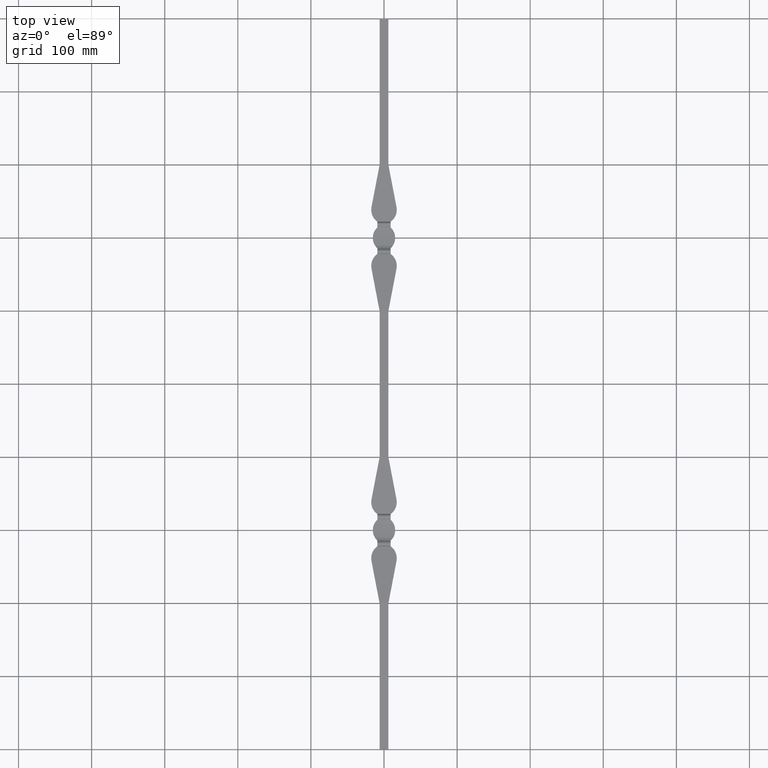
[diagram: clean part render]
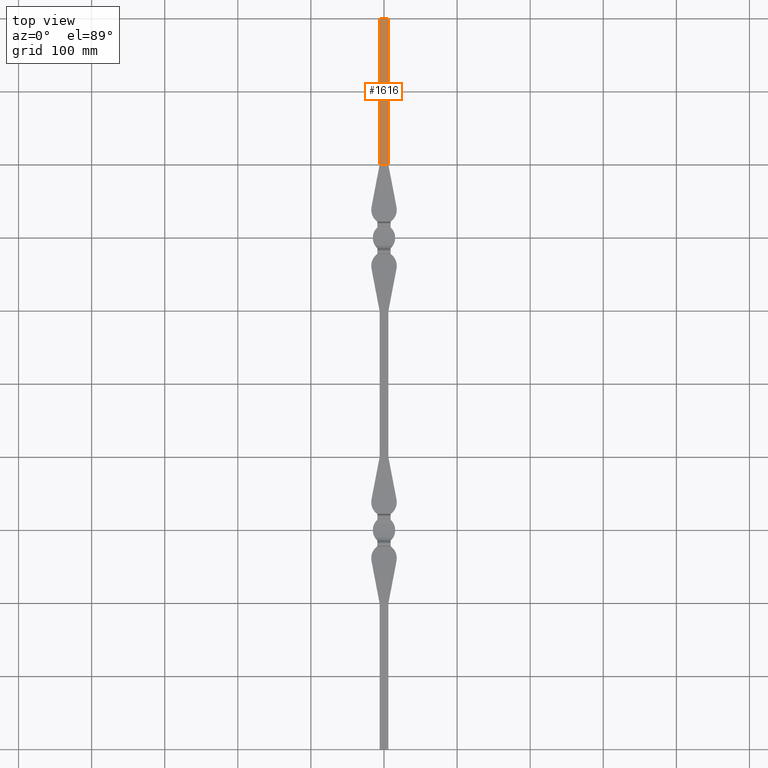
[diagram: same view with one face highlighted and labeled with its STEP entity id]
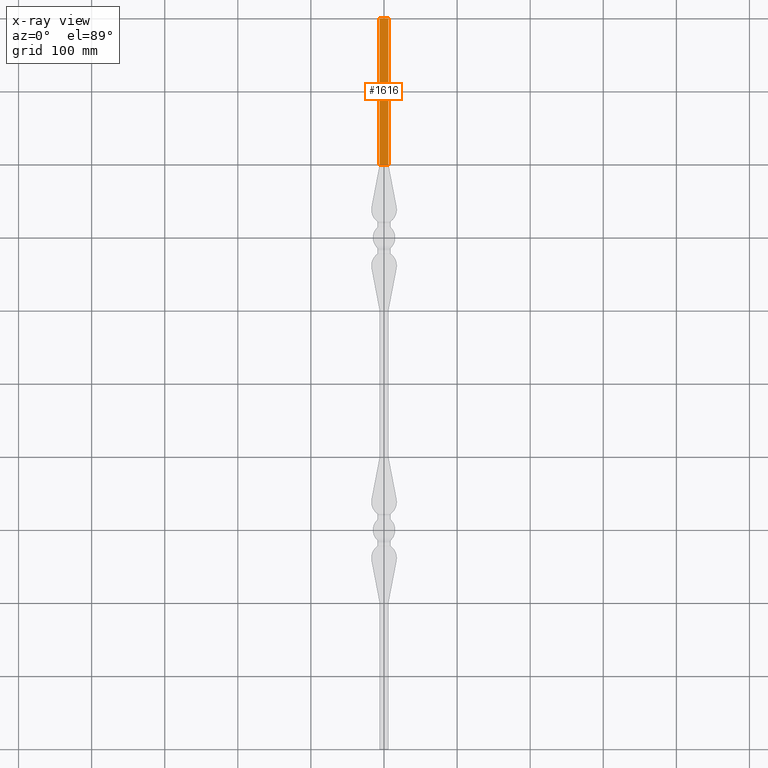
[diagram: x-ray of the same camera — body ghosted, the highlighted face saturated]
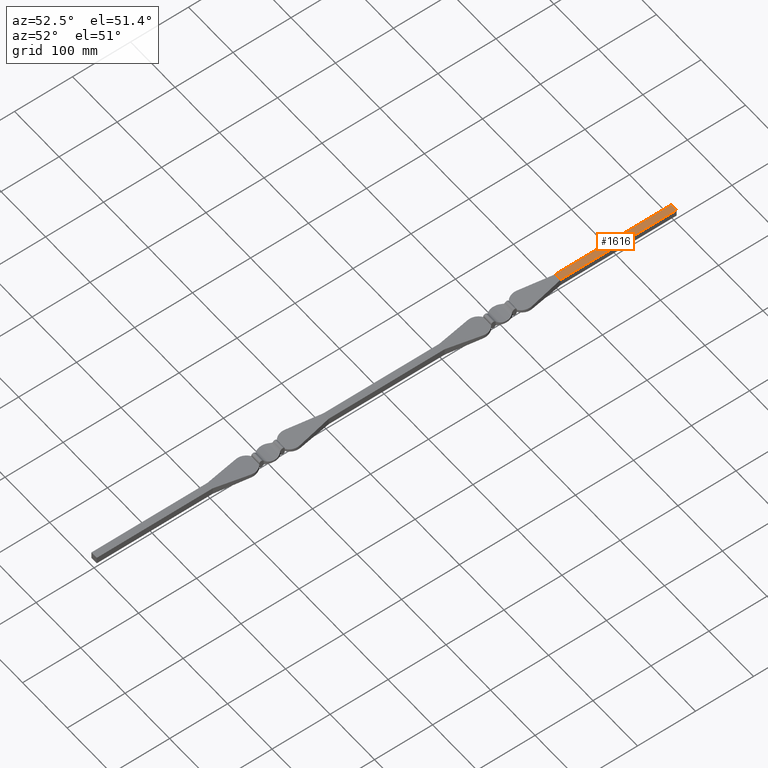
[diagram: same view with one face highlighted and labeled with its STEP entity id]
A machine part, top view. The second image highlights one B-rep face of the part: STEP entity #1616.
The next image is the same camera in x-ray: the body ghosted, the highlighted face saturated — about 0% of this face is hidden behind the body in this view.
A second angle (auxiliary view) of the same face is appended — the face is thin or edge-on in the first view.
In plain terms, the highlighted planar face has unit normal (0, 0, -1).
Its self-contained STEP definition (entity closure, byte-faithful):
#704 = VECTOR ( 'NONE', #1904, 1000.000000000000000 ) ;
#1616 = ADVANCED_FACE ( 'NONE', ( #3382 ), #5319, .F. ) ;
#1664 = CARTESIAN_POINT ( 'NONE',  ( -6.000000000000000000, 300.0000000000000000, 6.000000000000000000 ) ) ;
#1904 = DIRECTION ( 'NONE',  ( -0.000000000000000000, -1.000000000000000000, -0.000000000000000000 ) ) ;
#1990 = EDGE_CURVE ( 'NONE', #9384, #3968, #3480, .T. ) ;
#2194 = VECTOR ( 'NONE', #3251, 1000.000000000000000 ) ;
#2425 = AXIS2_PLACEMENT_3D ( 'NONE', #10486, #5366, #10440 ) ;
#2650 = VERTEX_POINT ( 'NONE', #10101 ) ;
#3251 = DIRECTION ( 'NONE',  ( 1.000000000000000000, 0.000000000000000000, 0.000000000000000000 ) ) ;
#3331 = CARTESIAN_POINT ( 'NONE',  ( -6.000000000000000000, 100.0000000000000000, 6.000000000000000000 ) ) ;
#3382 = FACE_OUTER_BOUND ( 'NONE', #11107, .T. ) ;
#3480 = LINE ( 'NONE', #12453, #4462 ) ;
#3518 = EDGE_CURVE ( 'NONE', #11270, #2650, #12318, .T. ) ;
#3968 = VERTEX_POINT ( 'NONE', #5318 ) ;
#4077 = ORIENTED_EDGE ( 'NONE', *, *, #3518, .T. ) ;
#4274 = LINE ( 'NONE', #10263, #704 ) ;
#4462 = VECTOR ( 'NONE', #8262, 1000.000000000000000 ) ;
#5318 = CARTESIAN_POINT ( 'NONE',  ( 6.000000000000000000, 300.0000000000000000, 6.000000000000000000 ) ) ;
#5319 = PLANE ( 'NONE',  #2425 ) ;
#5366 = DIRECTION ( 'NONE',  ( 0.000000000000000000, 0.000000000000000000, -1.000000000000000000 ) ) ;
#5708 = ORIENTED_EDGE ( 'NONE', *, *, #1990, .F. ) ;
#5879 = CARTESIAN_POINT ( 'NONE',  ( -6.000000000000000000, 616.9705627484770503, 6.000000000000000000 ) ) ;
#5918 = ORIENTED_EDGE ( 'NONE', *, *, #12990, .F. ) ;
#7232 = EDGE_CURVE ( 'NONE', #9384, #11270, #13265, .T. ) ;
#7394 = CARTESIAN_POINT ( 'NONE',  ( -6.000000000000000000, 100.0000000000000000, 6.000000000000000000 ) ) ;
#7721 = VECTOR ( 'NONE', #10932, 1000.000000000000000 ) ;
#8262 = DIRECTION ( 'NONE',  ( 1.000000000000000000, -0.000000000000000000, 0.000000000000000000 ) ) ;
#9384 = VERTEX_POINT ( 'NONE', #1664 ) ;
#10101 = CARTESIAN_POINT ( 'NONE',  ( 6.000000000000000000, 100.0000000000000000, 6.000000000000000000 ) ) ;
#10263 = CARTESIAN_POINT ( 'NONE',  ( 6.000000000000000000, 616.9705627484770503, 6.000000000000000000 ) ) ;
#10440 = DIRECTION ( 'NONE',  ( -1.000000000000000000, 0.000000000000000000, -0.000000000000000000 ) ) ;
#10486 = CARTESIAN_POINT ( 'NONE',  ( -6.000000000000000000, 616.9705627484770503, 6.000000000000000000 ) ) ;
#10932 = DIRECTION ( 'NONE',  ( -0.000000000000000000, -1.000000000000000000, -0.000000000000000000 ) ) ;
#11107 = EDGE_LOOP ( 'NONE', ( #5708, #12478, #4077, #5918 ) ) ;
#11270 = VERTEX_POINT ( 'NONE', #3331 ) ;
#12318 = LINE ( 'NONE', #7394, #2194 ) ;
#12453 = CARTESIAN_POINT ( 'NONE',  ( -6.000000000000000000, 300.0000000000000000, 6.000000000000000000 ) ) ;
#12478 = ORIENTED_EDGE ( 'NONE', *, *, #7232, .T. ) ;
#12990 = EDGE_CURVE ( 'NONE', #3968, #2650, #4274, .T. ) ;
#13265 = LINE ( 'NONE', #5879, #7721 ) ;